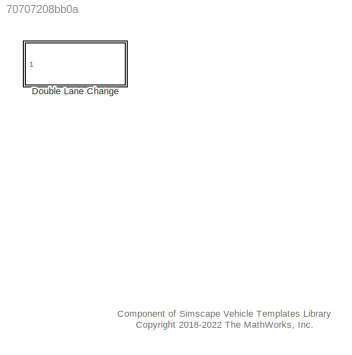
MODEL slx_70707208bb0a
KIND library
CONFIG AbsTol = auto
CONFIG EnableMultiTasking = off
CONFIG FixedStep = auto
CONFIG MaxStep = auto
CONFIG MinStep = auto
CONFIG RelTol = 1e-3
CONFIG SampleTimeConstraint = Unconstrained
CONFIG SolverName = VariableStepAuto
CONFIG StartTime = 0.0
CONFIG StopTime = 10.0
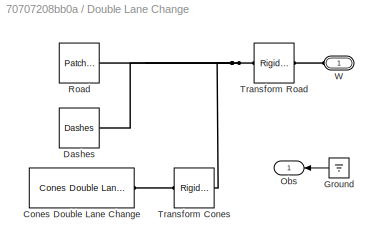
BLOCK [SubSystem] Double Lane Change
  Ports = [0, 1, 0, 0, 0, 1]
  RequestExecContextInheritance = off
BLOCK [Reference] Double Lane Change/Cones Double Lane Change  REF=sm_car_lib/Environment/Cones Double Lane Change  (lib defined in slx_05426f0848b6, slx_5dc2867fb1c9)
  Ports = [0, 0, 0, 0, 0, 1]
  SourceBlock = sm_car_lib/Environment/Cones Double Lane Change
BLOCK [Reference] Double Lane Change/Dashes  REF=sm_car_lib/Environment/Dashes  (lib defined in slx_05426f0848b6, slx_5dc2867fb1c9)
  Ports = [0, 0, 0, 0, 0, 1]
  SourceBlock = sm_car_lib/Environment/Dashes
BLOCK [Ground] Double Lane Change/Ground
  NameLocation = top
BLOCK [Outport] Double Lane Change/Obs
  VectorParamsAs1DForOutWhenUnconnected = off
BLOCK [Reference] Double Lane Change/Road  REF=sm_car_lib/Environment/Patch Rectangle  (lib defined in slx_05426f0848b6, slx_5dc2867fb1c9)
  Ports = [0, 0, 0, 0, 0, 0, 1]
  SourceBlock = sm_car_lib/Environment/Patch Rectangle
BLOCK [Reference] Double Lane Change/Transform Cones  REF=sm_lib/Frames and
Transforms/Rigid
Transform
  Ports = [0, 0, 0, 0, 0, 1, 1]
  SourceBlock = sm_lib/Frames and\nTransforms/Rigid\nTransform
  SourceProductBaseCode = MS
  SourceType = Rigid\nTransform
BLOCK [Reference] Double Lane Change/Transform Road  REF=sm_lib/Frames and
Transforms/Rigid
Transform
  Ports = [0, 0, 0, 0, 0, 1, 1]
  SourceBlock = sm_lib/Frames and\nTransforms/Rigid\nTransform
  SourceProductBaseCode = MS
  SourceType = Rigid\nTransform
BLOCK [PMIOPort] Double Lane Change/W
  NameLocation = top
  Side = Left
ANNOTATION (root): Component of Simscape Vehicle Templates Library <copyright redacted>
LINE Double Lane Change/Ground:1 -> Double Lane Change/Obs:1
PLINE Double Lane Change/Cones Double Lane Change:LConn1 -- Double Lane Change/Transform Cones:RConn1
PNET net1: Double Lane Change/Dashes:LConn1 -- Double Lane Change/Road:RConn1 -- Double Lane Change/Transform Cones:LConn1 -- Double Lane Change/Transform Road:RConn1
PLINE Double Lane Change/Transform Road:LConn1 -- Double Lane Change/W:RConn1
note: PNET lines group multi-terminal physical nets as a canonical sorted terminal list (undirected conserving connections); 2-terminal nets keep the pairwise PLINE form
